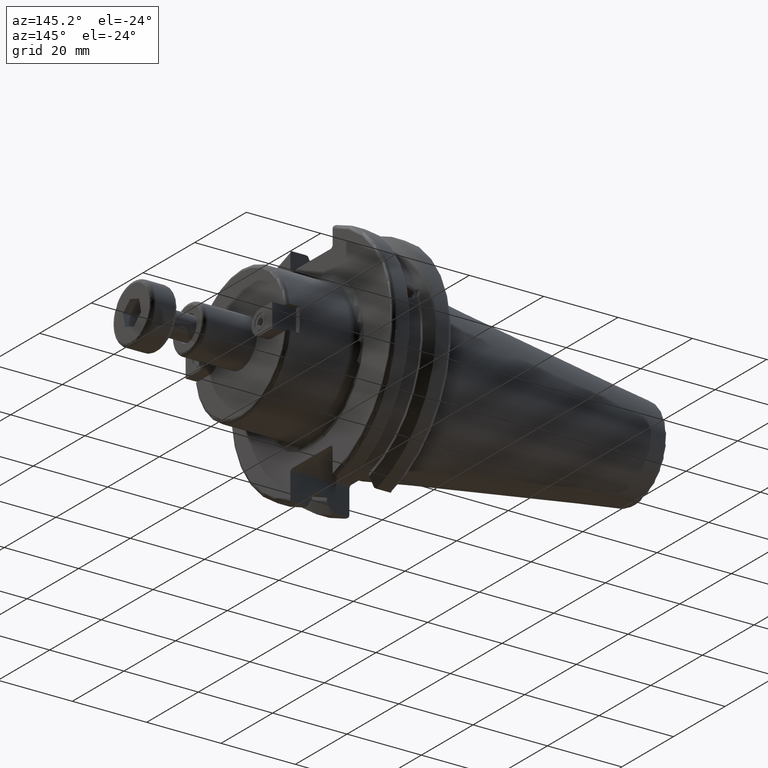
[diagram: clean part render]
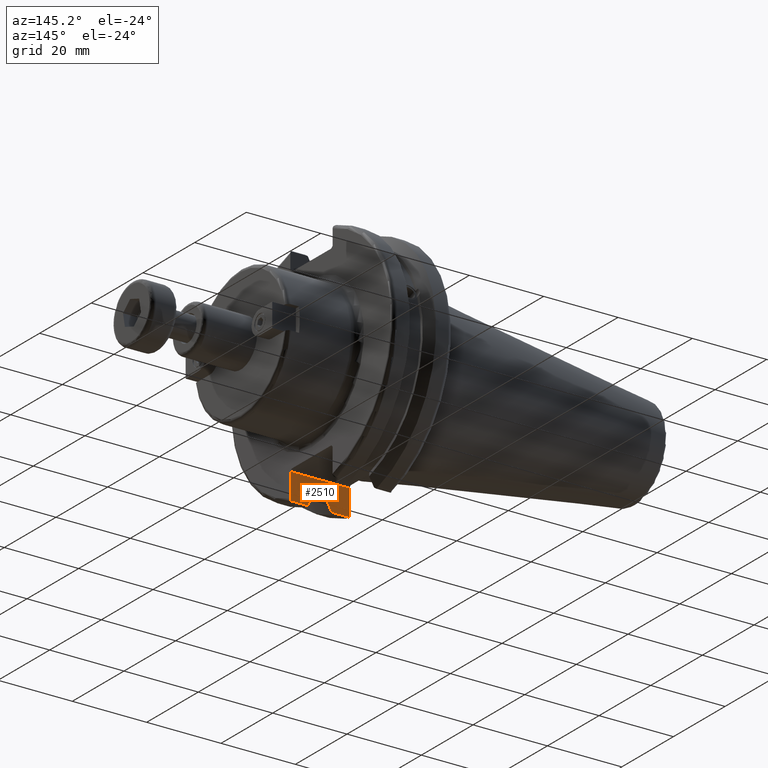
[diagram: same view with one face highlighted and labeled with its STEP entity id]
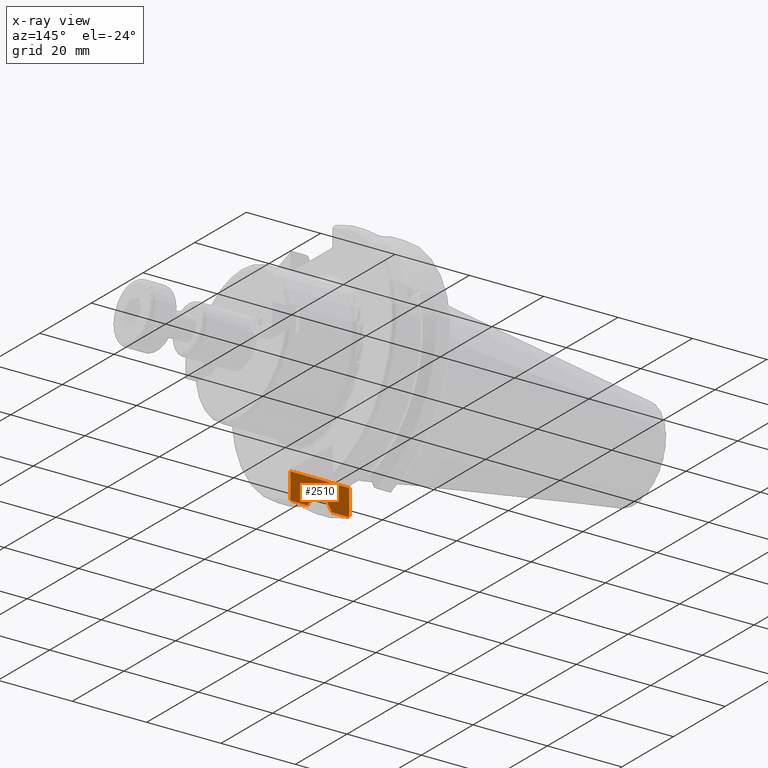
[diagram: x-ray of the same camera — body ghosted, the highlighted face saturated]
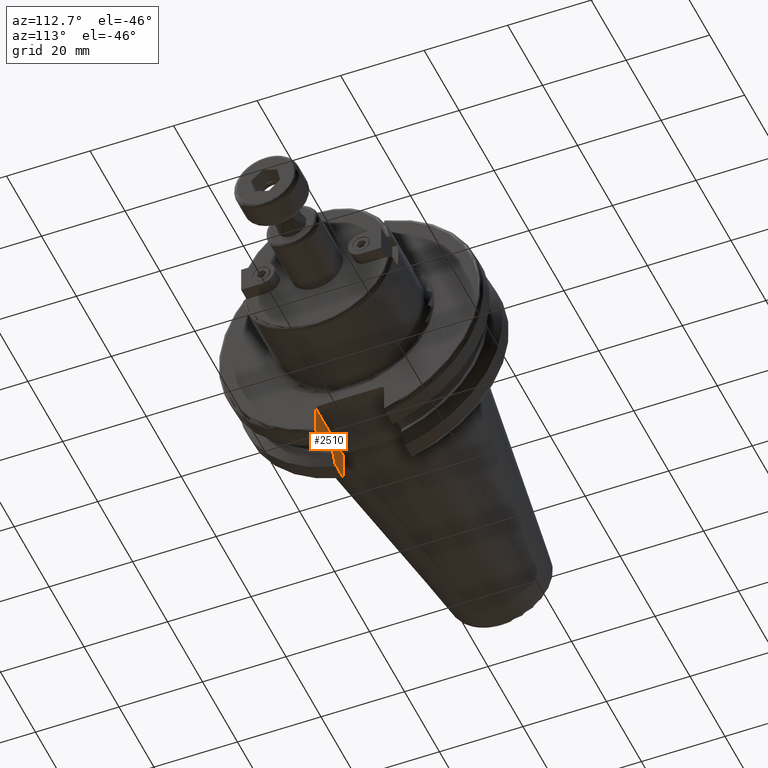
[diagram: same view with one face highlighted and labeled with its STEP entity id]
A machine part, auxiliary view. The second image highlights one B-rep face of the part: STEP entity #2510.
The next image is the same camera in x-ray: the body ghosted, the highlighted face saturated — about 0% of this face is hidden behind the body in this view.
A second angle (auxiliary view) of the same face is appended — the face is thin or edge-on in the first view.
In plain terms, the highlighted planar face has unit normal (0, -1, 0).
Its self-contained STEP definition (entity closure, byte-faithful):
#53=(
BOUNDED_CURVE()
B_SPLINE_CURVE(2,(#4160,#4161,#4162),.UNSPECIFIED.,.F.,.F.)
B_SPLINE_CURVE_WITH_KNOTS((3,3),(0.,0.276549142795441),.UNSPECIFIED.)
CURVE()
GEOMETRIC_REPRESENTATION_ITEM()
RATIONAL_B_SPLINE_CURVE((1.,1.00095203903848,1.0003161444499))
REPRESENTATION_ITEM('')
);
#63=(
BOUNDED_CURVE()
B_SPLINE_CURVE(2,(#4499,#4500,#4501),.UNSPECIFIED.,.F.,.F.)
B_SPLINE_CURVE_WITH_KNOTS((3,3),(0.0550586467393311,0.331607789535851),
 .UNSPECIFIED.)
CURVE()
GEOMETRIC_REPRESENTATION_ITEM()
RATIONAL_B_SPLINE_CURVE((1.00031614445049,1.00095203904028,1.))
REPRESENTATION_ITEM('')
);
#382=FACE_OUTER_BOUND('',#544,.T.);
#544=EDGE_LOOP('',(#1987,#1988,#1989,#1990,#1991,#1992,#1993,#1994,#1995,
#1996,#1997,#1998));
#669=LINE('',#4028,#839);
#686=LINE('',#4181,#856);
#687=LINE('',#4185,#857);
#688=LINE('',#4189,#858);
#714=LINE('',#4379,#884);
#729=LINE('',#4497,#899);
#730=LINE('',#4503,#900);
#731=LINE('',#4510,#901);
#839=VECTOR('',#3145,10.);
#856=VECTOR('',#3226,10.);
#857=VECTOR('',#3231,10.);
#858=VECTOR('',#3236,10.);
#884=VECTOR('',#3352,10.);
#899=VECTOR('',#3387,10.);
#900=VECTOR('',#3388,10.);
#901=VECTOR('',#3389,10.);
#1002=B_SPLINE_CURVE_WITH_KNOTS('',3,(#4443,#4444,#4445,#4446,#4447,#4448),
 .UNSPECIFIED.,.F.,.F.,(4,2,4),(0.097738363091569,0.112311108149119,0.150804350305566),
 .UNSPECIFIED.);
#1007=B_SPLINE_CURVE_WITH_KNOTS('',3,(#4504,#4505,#4506,#4507,#4508,#4509),
 .UNSPECIFIED.,.F.,.F.,(4,2,4),(0.452741154494498,0.491581665024872,0.505824174364157),
 .UNSPECIFIED.);
#1064=VERTEX_POINT('',#4025);
#1065=VERTEX_POINT('',#4027);
#1092=VERTEX_POINT('',#4157);
#1093=VERTEX_POINT('',#4159);
#1098=VERTEX_POINT('',#4179);
#1099=VERTEX_POINT('',#4183);
#1100=VERTEX_POINT('',#4187);
#1138=VERTEX_POINT('',#4357);
#1148=VERTEX_POINT('',#4377);
#1159=VERTEX_POINT('',#4442);
#1168=VERTEX_POINT('',#4498);
#1169=VERTEX_POINT('',#4502);
#1329=EDGE_CURVE('',#1064,#1065,#669,.T.);
#1367=EDGE_CURVE('',#1092,#1093,#53,.T.);
#1374=EDGE_CURVE('',#1098,#1092,#686,.T.);
#1376=EDGE_CURVE('',#1099,#1098,#687,.T.);
#1378=EDGE_CURVE('',#1100,#1099,#688,.T.);
#1441=EDGE_CURVE('',#1148,#1138,#714,.T.);
#1458=EDGE_CURVE('',#1159,#1064,#1002,.T.);
#1471=EDGE_CURVE('',#1093,#1159,#729,.T.);
#1472=EDGE_CURVE('',#1168,#1100,#63,.T.);
#1473=EDGE_CURVE('',#1169,#1168,#730,.T.);
#1474=EDGE_CURVE('',#1138,#1169,#1007,.T.);
#1475=EDGE_CURVE('',#1065,#1148,#731,.T.);
#1987=ORIENTED_EDGE('',*,*,#1458,.F.);
#1988=ORIENTED_EDGE('',*,*,#1471,.F.);
#1989=ORIENTED_EDGE('',*,*,#1367,.F.);
#1990=ORIENTED_EDGE('',*,*,#1374,.F.);
#1991=ORIENTED_EDGE('',*,*,#1376,.F.);
#1992=ORIENTED_EDGE('',*,*,#1378,.F.);
#1993=ORIENTED_EDGE('',*,*,#1472,.F.);
#1994=ORIENTED_EDGE('',*,*,#1473,.F.);
#1995=ORIENTED_EDGE('',*,*,#1474,.F.);
#1996=ORIENTED_EDGE('',*,*,#1441,.F.);
#1997=ORIENTED_EDGE('',*,*,#1475,.F.);
#1998=ORIENTED_EDGE('',*,*,#1329,.F.);
#2397=PLANE('',#2844);
#2510=ADVANCED_FACE('',(#382),#2397,.F.);
#2844=AXIS2_PLACEMENT_3D('',#4496,#3385,#3386);
#3145=DIRECTION('',(0.,0.,1.));
#3226=DIRECTION('',(0.,0.,-1.));
#3231=DIRECTION('',(1.,0.,0.));
#3236=DIRECTION('',(0.,0.,1.));
#3352=DIRECTION('',(0.,0.,-1.));
#3385=DIRECTION('center_axis',(0.,-1.,0.));
#3386=DIRECTION('ref_axis',(-1.,0.,0.));
#3387=DIRECTION('',(1.,0.,0.));
#3388=DIRECTION('',(1.,0.,0.));
#3389=DIRECTION('',(-1.,0.,0.));
#4025=CARTESIAN_POINT('',(19.05,-8.19,-29.6392712461019));
#4027=CARTESIAN_POINT('',(19.05,-8.19,-23.1));
#4028=CARTESIAN_POINT('',(19.05,-8.19,-11.3));
#4157=CARTESIAN_POINT('',(13.0491,-8.19,-27.7771386827498));
#4159=CARTESIAN_POINT('',(14.3815146964874,-8.19,-30.1755016258903));
#4160=CARTESIAN_POINT('Ctrl Pts',(13.0491,-8.19,-27.7771386827498));
#4161=CARTESIAN_POINT('Ctrl Pts',(13.6877364384886,-8.19,-28.930368953993));
#4162=CARTESIAN_POINT('Ctrl Pts',(14.3815146964874,-8.19,-30.1755016258903));
#4179=CARTESIAN_POINT('',(13.0491,-8.19,-26.932255754021));
#4181=CARTESIAN_POINT('',(13.0491,-8.19,-11.3));
#4183=CARTESIAN_POINT('',(9.2191,-8.19,-26.932255754021));
#4185=CARTESIAN_POINT('',(11.1341,-8.19,-26.932255754021));
#4187=CARTESIAN_POINT('',(9.2191,-8.19,-27.7771386827498));
#4189=CARTESIAN_POINT('',(9.2191,-8.19,-11.3));
#4357=CARTESIAN_POINT('',(3.175,-8.19,-29.6392712461019));
#4377=CARTESIAN_POINT('',(3.175,-8.19,-23.1));
#4379=CARTESIAN_POINT('',(3.175,-8.19,-11.3));
#4442=CARTESIAN_POINT('',(18.9058722749097,-8.19,-30.1755016258903));
#4443=CARTESIAN_POINT('Ctrl Pts',(18.9058722749097,-8.19,-30.1755016258903));
#4444=CARTESIAN_POINT('Ctrl Pts',(18.9324477233044,-8.19,-30.1299319366157));
#4445=CARTESIAN_POINT('Ctrl Pts',(18.9550700364447,-8.19,-30.0829389905409));
#4446=CARTESIAN_POINT('Ctrl Pts',(19.0210043632013,-8.19,-29.9188002007263));
#4447=CARTESIAN_POINT('Ctrl Pts',(19.05,-8.19,-29.76758205329));
#4448=CARTESIAN_POINT('Ctrl Pts',(19.05,-8.19,-29.6392712461019));
#4496=CARTESIAN_POINT('Origin',(20.05,-8.19,-22.6));
#4497=CARTESIAN_POINT('',(16.8551333845378,-8.19,-30.1755016258903));
#4498=CARTESIAN_POINT('',(7.88668530351256,-8.19,-30.1755016258903));
#4499=CARTESIAN_POINT('Ctrl Pts',(7.88668530351256,-8.19,-30.1755016258903));
#4500=CARTESIAN_POINT('Ctrl Pts',(8.5804635615239,-8.19,-28.9303689539705));
#4501=CARTESIAN_POINT('Ctrl Pts',(9.2191,-8.19,-27.7771386827498));
#4502=CARTESIAN_POINT('',(3.31912772509028,-8.19,-30.1755016258903));
#4503=CARTESIAN_POINT('',(5.39146661546218,-8.19,-30.1755016258903));
#4504=CARTESIAN_POINT('Ctrl Pts',(3.175,-8.19,-29.6392712461018));
#4505=CARTESIAN_POINT('Ctrl Pts',(3.175,-8.19,-29.7687396145364));
#4506=CARTESIAN_POINT('Ctrl Pts',(3.20451443291695,-8.19,-29.9212724384851));
#4507=CARTESIAN_POINT('Ctrl Pts',(3.27103565282437,-8.19,-30.0852355256475));
#4508=CARTESIAN_POINT('Ctrl Pts',(3.29318362718666,-8.19,-30.131014531546));
#4509=CARTESIAN_POINT('Ctrl Pts',(3.31912772509028,-8.19,-30.1755016258903));
#4510=CARTESIAN_POINT('',(17.87875,-8.19,-23.1));